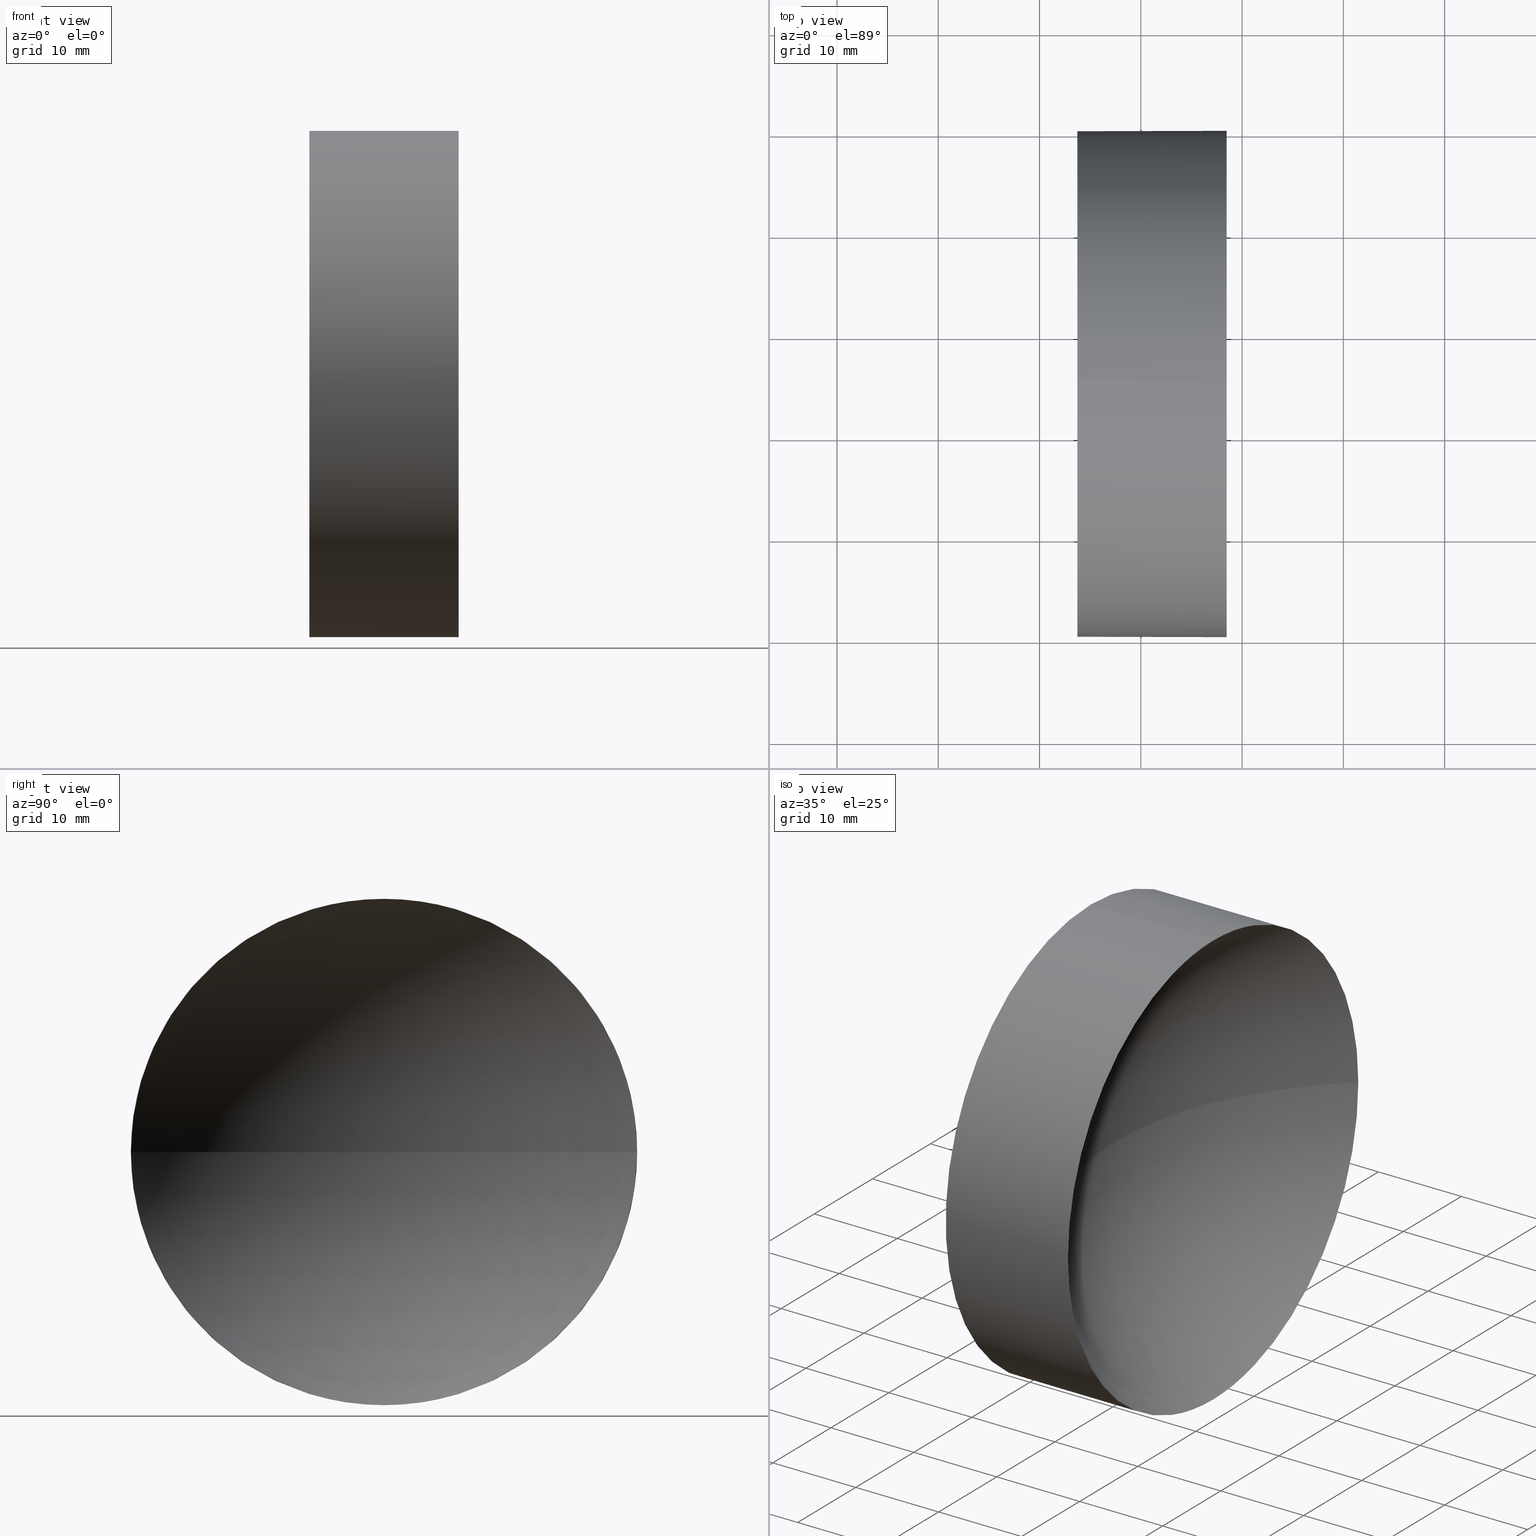
[diagram: canonical four-view strip — front | top / right | iso, engineering-drawing reading convention]
A machine part, canonical four-view strip (front | top / right | iso — engineering-drawing reading convention). The complete STEP part file that produces these views, byte-faithful:
ISO-10303-21;
HEADER;
FILE_DESCRIPTION (( 'STEP AP214' ),
    '1' );
FILE_NAME ('120054.STEP',
    '2019-06-18T01:30:45',
    ( '' ),
    ( '' ),
    'SwSTEP 2.0',
    'SolidWorks 2016',
    '' );
FILE_SCHEMA (( 'AUTOMOTIVE_DESIGN' ));
ENDSEC;

DATA;
#1 = EDGE_CURVE ( 'NONE', #76, #15, #160, .T. ) ;
#2 = ADVANCED_FACE ( 'NONE', ( #72 ), #172, .T. ) ;
#3 = DIRECTION ( 'NONE',  ( -1.000000000000000000, -0.0000000000000000000, -0.0000000000000000000 ) ) ;
#4 = CARTESIAN_POINT ( 'NONE',  ( 128.4728774773483100, 65.15563045701519200, 0.0000000000000000000 ) ) ;
#5 = ORIENTED_EDGE ( 'NONE', *, *, #47, .F. ) ;
#6 = SURFACE_SIDE_STYLE ('',( #181 ) ) ;
#7 = ORIENTED_EDGE ( 'NONE', *, *, #88, .F. ) ;
#8 = CIRCLE ( 'NONE', #132, 32.50000000000000000 ) ;
#9 = APPLICATION_PROTOCOL_DEFINITION ( 'draft international standard', 'automotive_design', 1998, #96 ) ;
#10 = CARTESIAN_POINT ( 'NONE',  ( 128.4728774773483100, 65.15563045701519200, 24.99999999999999300 ) ) ;
#11 = DIRECTION ( 'NONE',  ( 0.0000000000000000000, 0.0000000000000000000, -1.000000000000000000 ) ) ;
#12 = EDGE_CURVE ( 'NONE', #76, #185, #83, .T. ) ;
#13 = ORIENTED_EDGE ( 'NONE', *, *, #1, .T. ) ;
#14 = CARTESIAN_POINT ( 'NONE',  ( 0.0000000000000000000, 0.0000000000000000000, 0.0000000000000000000 ) ) ;
#15 = VERTEX_POINT ( 'NONE', #55 ) ;
#16 = SPHERICAL_SURFACE ( 'NONE', #134, 32.50000000000000000 ) ;
#17 = PRODUCT_RELATED_PRODUCT_CATEGORY ( 'part', '', ( #146 ) ) ;
#18 = MANIFOLD_SOLID_BREP ( '��ת1', #65 ) ;
#19 = ORIENTED_EDGE ( 'NONE', *, *, #53, .T. ) ;
#20 = DIRECTION ( 'NONE',  ( 0.0000000000000000000, 0.0000000000000000000, 1.000000000000000000 ) ) ;
#21 = LINE ( 'NONE', #97, #158 ) ;
#22 = AXIS2_PLACEMENT_3D ( 'NONE', #73, #3, #105 ) ;
#23 = CIRCLE ( 'NONE', #30, 24.99999999999999300 ) ;
#24 = APPLICATION_PROTOCOL_DEFINITION ( 'draft international standard', 'automotive_design', 1998, #130 ) ;
#25 =( NAMED_UNIT ( * ) SI_UNIT ( $, .STERADIAN. ) SOLID_ANGLE_UNIT ( ) );
#26 = DIRECTION ( 'NONE',  ( 0.0000000000000000000, 0.0000000000000000000, 1.000000000000000000 ) ) ;
#27 = FACE_OUTER_BOUND ( 'NONE', #37, .T. ) ;
#28 = ORIENTED_EDGE ( 'NONE', *, *, #34, .F. ) ;
#29 = SURFACE_STYLE_FILL_AREA ( #99 ) ;
#30 = AXIS2_PLACEMENT_3D ( 'NONE', #4, #89, #94 ) ;
#31 = ORIENTED_EDGE ( 'NONE', *, *, #47, .T. ) ;
#32 = CARTESIAN_POINT ( 'NONE',  ( 128.4728774773483100, 65.15563045701519200, -24.99999999999999300 ) ) ;
#33 = DIRECTION ( 'NONE',  ( 0.0000000000000000000, 0.0000000000000000000, 1.000000000000000000 ) ) ;
#34 = EDGE_CURVE ( 'NONE', #15, #62, #23, .T. ) ;
#35 = CARTESIAN_POINT ( 'NONE',  ( 105.6218371238301200, 65.15563045701519200, 24.99999999999999300 ) ) ;
#36 = DIRECTION ( 'NONE',  ( 0.0000000000000000000, 0.0000000000000000000, 1.000000000000000000 ) ) ;
#37 = EDGE_LOOP ( 'NONE', ( #43, #85 ) ) ;
#38 = DIRECTION ( 'NONE',  ( 1.000000000000000000, 0.0000000000000000000, 0.0000000000000000000 ) ) ;
#39 = DIRECTION ( 'NONE',  ( 0.0000000000000000000, 0.0000000000000000000, 1.000000000000000000 ) ) ;
#40 =( LENGTH_UNIT ( ) NAMED_UNIT ( * ) SI_UNIT ( .MILLI., .METRE. ) );
#41 = PRODUCT_CONTEXT ( 'NONE', #130, 'mechanical' ) ;
#42 = PRESENTATION_STYLE_ASSIGNMENT (( #122 ) ) ;
#43 = ORIENTED_EDGE ( 'NONE', *, *, #88, .T. ) ;
#44 = EDGE_CURVE ( 'NONE', #148, #185, #142, .T. ) ;
#45 = EDGE_LOOP ( 'NONE', ( #147, #116, #31, #167, #111 ) ) ;
#46 = CIRCLE ( 'NONE', #151, 32.50000000000000000 ) ;
#47 = EDGE_CURVE ( 'NONE', #103, #76, #98, .T. ) ;
#48 = ORIENTED_EDGE ( 'NONE', *, *, #34, .T. ) ;
#49 = AXIS2_PLACEMENT_3D ( 'NONE', #127, #38, #128 ) ;
#50 = CARTESIAN_POINT ( 'NONE',  ( 149.2394371346434800, 65.15563045701517800, 0.0000000000000000000 ) ) ;
#51 = UNCERTAINTY_MEASURE_WITH_UNIT (LENGTH_MEASURE( 1.000000000000000100E-005 ), #169, 'distance_accuracy_value', 'NONE');
#52 = DIRECTION ( 'NONE',  ( 0.0000000000000000000, 1.000000000000000000, 0.0000000000000000000 ) ) ;
#53 = EDGE_CURVE ( 'NONE', #103, #120, #46, .T. ) ;
#54 = AXIS2_PLACEMENT_3D ( 'NONE', #141, #139, #143 ) ;
#55 = CARTESIAN_POINT ( 'NONE',  ( 128.4728774773483100, 90.15563045701519200, 0.0000000000000000000 ) ) ;
#56 = DIRECTION ( 'NONE',  ( -1.000000000000000000, -0.0000000000000000000, -0.0000000000000000000 ) ) ;
#57 = EDGE_CURVE ( 'NONE', #15, #120, #8, .T. ) ;
#58 = CARTESIAN_POINT ( 'NONE',  ( 113.7394371346435000, 65.15563045701519200, 0.0000000000000000000 ) ) ;
#59 = DIRECTION ( 'NONE',  ( 1.000000000000000000, 0.0000000000000000000, 0.0000000000000000000 ) ) ;
#60 = ORIENTED_EDGE ( 'NONE', *, *, #79, .T. ) ;
#61 = DIRECTION ( 'NONE',  ( -1.000000000000000000, -0.0000000000000000000, -0.0000000000000000000 ) ) ;
#62 = VERTEX_POINT ( 'NONE', #32 ) ;
#63 = CIRCLE ( 'NONE', #82, 24.99999999999999300 ) ;
#64 =( GEOMETRIC_REPRESENTATION_CONTEXT ( 3 ) GLOBAL_UNCERTAINTY_ASSIGNED_CONTEXT ( ( #51 ) ) GLOBAL_UNIT_ASSIGNED_CONTEXT ( ( #169, #153, #25 ) ) REPRESENTATION_CONTEXT ( 'NONE', 'WORKASPACE' ) );
#65 = CLOSED_SHELL ( 'NONE', ( #84, #133, #108, #2, #68 ) ) ;
#66 = EDGE_CURVE ( 'NONE', #62, #103, #63, .T. ) ;
#67 = VECTOR ( 'NONE', #56, 1000.000000000000000 ) ;
#68 = ADVANCED_FACE ( 'NONE', ( #27 ), #156, .F. ) ;
#69 = MECHANICAL_DESIGN_GEOMETRIC_PRESENTATION_REPRESENTATION (  '', ( #77 ), #118 ) ;
#70 = ORIENTED_EDGE ( 'NONE', *, *, #57, .T. ) ;
#71 = DIRECTION ( 'NONE',  ( 0.0000000000000000000, 0.0000000000000000000, 1.000000000000000000 ) ) ;
#72 = FACE_OUTER_BOUND ( 'NONE', #45, .T. ) ;
#73 = CARTESIAN_POINT ( 'NONE',  ( 105.6218371238301200, 65.15563045701519200, 0.0000000000000000000 ) ) ;
#74 =( LENGTH_UNIT ( ) NAMED_UNIT ( * ) SI_UNIT ( .MILLI., .METRE. ) );
#75 = CARTESIAN_POINT ( 'NONE',  ( 128.4728774773483100, 40.15563045701518500, -3.061616997868382300E-015 ) ) ;
#76 = VERTEX_POINT ( 'NONE', #10 ) ;
#77 = STYLED_ITEM ( 'NONE', ( #42 ), #18 ) ;
#78 = DIRECTION ( 'NONE',  ( -1.000000000000000000, -0.0000000000000000000, -0.0000000000000000000 ) ) ;
#79 = EDGE_CURVE ( 'NONE', #62, #148, #21, .T. ) ;
#80 = SHAPE_DEFINITION_REPRESENTATION ( #90, #104 ) ;
#81 = ORIENTED_EDGE ( 'NONE', *, *, #1, .F. ) ;
#82 = AXIS2_PLACEMENT_3D ( 'NONE', #170, #182, #154 ) ;
#83 = LINE ( 'NONE', #35, #67 ) ;
#84 = ADVANCED_FACE ( 'NONE', ( #174 ), #121, .T. ) ;
#85 = ORIENTED_EDGE ( 'NONE', *, *, #44, .T. ) ;
#86 =( GEOMETRIC_REPRESENTATION_CONTEXT ( 3 ) GLOBAL_UNCERTAINTY_ASSIGNED_CONTEXT ( ( #168 ) ) GLOBAL_UNIT_ASSIGNED_CONTEXT ( ( #40, #95, #184 ) ) REPRESENTATION_CONTEXT ( 'NONE', 'WORKASPACE' ) );
#87 = PRODUCT_DEFINITION_CONTEXT ( 'detailed design', #96, 'design' ) ;
#88 = EDGE_CURVE ( 'NONE', #185, #148, #117, .T. ) ;
#89 = DIRECTION ( 'NONE',  ( -1.000000000000000000, -0.0000000000000000000, -0.0000000000000000000 ) ) ;
#90 = PRODUCT_DEFINITION_SHAPE ( 'NONE', 'NONE',  #145 ) ;
#91 = AXIS2_PLACEMENT_3D ( 'NONE', #112, #61, #36 ) ;
#92 = ORIENTED_EDGE ( 'NONE', *, *, #57, .F. ) ;
#93 = PRESENTATION_STYLE_ASSIGNMENT (( #144 ) ) ;
#94 = DIRECTION ( 'NONE',  ( 0.0000000000000000000, 0.0000000000000000000, 1.000000000000000000 ) ) ;
#95 =( NAMED_UNIT ( * ) PLANE_ANGLE_UNIT ( ) SI_UNIT ( $, .RADIAN. ) );
#96 = APPLICATION_CONTEXT ( 'automotive_design' ) ;
#97 = CARTESIAN_POINT ( 'NONE',  ( 105.6218371238301200, 65.15563045701519200, -24.99999999999999300 ) ) ;
#98 = CIRCLE ( 'NONE', #178, 24.99999999999999300 ) ;
#99 = FILL_AREA_STYLE ('',( #183 ) ) ;
#100 = AXIS2_PLACEMENT_3D ( 'NONE', #58, #175, #20 ) ;
#101 = EDGE_LOOP ( 'NONE', ( #163, #137, #28, #70 ) ) ;
#102 = STYLED_ITEM ( 'NONE', ( #93 ), #104 ) ;
#103 = VERTEX_POINT ( 'NONE', #75 ) ;
#104 = ADVANCED_BREP_SHAPE_REPRESENTATION ( '120054', ( #18, #162 ), #64 ) ;
#105 = DIRECTION ( 'NONE',  ( 0.0000000000000000000, 0.0000000000000000000, 1.000000000000000000 ) ) ;
#106 = DIRECTION ( 'NONE',  ( 0.0000000000000000000, 1.000000000000000000, 1.224646799147353500E-016 ) ) ;
#107 = DIRECTION ( 'NONE',  ( -1.000000000000000000, -0.0000000000000000000, -0.0000000000000000000 ) ) ;
#108 = ADVANCED_FACE ( 'NONE', ( #125 ), #16, .F. ) ;
#109 = DIRECTION ( 'NONE',  ( 1.000000000000000000, 0.0000000000000000000, 0.0000000000000000000 ) ) ;
#110 = PRESENTATION_LAYER_ASSIGNMENT (  '', '', ( #102 ) ) ;
#111 = ORIENTED_EDGE ( 'NONE', *, *, #44, .F. ) ;
#112 = CARTESIAN_POINT ( 'NONE',  ( 105.6218371238301200, 65.15563045701519200, 0.0000000000000000000 ) ) ;
#113 = DIRECTION ( 'NONE',  ( 0.0000000000000000000, 1.000000000000000000, 0.0000000000000000000 ) ) ;
#114 = CARTESIAN_POINT ( 'NONE',  ( 113.7394371346435000, 65.15563045701519200, -24.99999999999999300 ) ) ;
#115 = CARTESIAN_POINT ( 'NONE',  ( 113.7394371346435000, 65.15563045701519200, 24.99999999999999300 ) ) ;
#116 = ORIENTED_EDGE ( 'NONE', *, *, #66, .T. ) ;
#117 = CIRCLE ( 'NONE', #54, 24.99999999999999300 ) ;
#118 =( GEOMETRIC_REPRESENTATION_CONTEXT ( 3 ) GLOBAL_UNCERTAINTY_ASSIGNED_CONTEXT ( ( #119 ) ) GLOBAL_UNIT_ASSIGNED_CONTEXT ( ( #74, #138, #166 ) ) REPRESENTATION_CONTEXT ( 'NONE', 'WORKASPACE' ) );
#119 = UNCERTAINTY_MEASURE_WITH_UNIT (LENGTH_MEASURE( 1.000000000000000100E-005 ), #74, 'distance_accuracy_value', 'NONE');
#120 = VERTEX_POINT ( 'NONE', #152 ) ;
#121 = CYLINDRICAL_SURFACE ( 'NONE', #91, 24.99999999999999300 ) ;
#122 = SURFACE_STYLE_USAGE ( .BOTH. , #6 ) ;
#123 = CARTESIAN_POINT ( 'NONE',  ( 128.4728774773483100, 65.15563045701519200, 0.0000000000000000000 ) ) ;
#124 = PRESENTATION_LAYER_ASSIGNMENT (  '', '', ( #77 ) ) ;
#125 = FACE_OUTER_BOUND ( 'NONE', #101, .T. ) ;
#126 = DIRECTION ( 'NONE',  ( 0.0000000000000000000, 0.0000000000000000000, -1.000000000000000000 ) ) ;
#127 = CARTESIAN_POINT ( 'NONE',  ( 113.7394371346435000, 65.15563045701519200, 0.0000000000000000000 ) ) ;
#128 = DIRECTION ( 'NONE',  ( 0.0000000000000000000, 0.0000000000000000000, -1.000000000000000000 ) ) ;
#129 = SURFACE_SIDE_STYLE ('',( #29 ) ) ;
#130 = APPLICATION_CONTEXT ( 'automotive_design' ) ;
#131 = EDGE_LOOP ( 'NONE', ( #5, #19, #92, #81 ) ) ;
#132 = AXIS2_PLACEMENT_3D ( 'NONE', #155, #39, #109 ) ;
#133 = ADVANCED_FACE ( 'NONE', ( #173 ), #164, .F. ) ;
#134 = AXIS2_PLACEMENT_3D ( 'NONE', #50, #11, #113 ) ;
#135 = FILL_AREA_STYLE ('',( #165 ) ) ;
#136 = CARTESIAN_POINT ( 'NONE',  ( 149.2394371346434800, 65.15563045701517800, 0.0000000000000000000 ) ) ;
#137 = ORIENTED_EDGE ( 'NONE', *, *, #66, .F. ) ;
#138 =( NAMED_UNIT ( * ) PLANE_ANGLE_UNIT ( ) SI_UNIT ( $, .RADIAN. ) );
#139 = DIRECTION ( 'NONE',  ( -1.000000000000000000, -0.0000000000000000000, -0.0000000000000000000 ) ) ;
#140 = AXIS2_PLACEMENT_3D ( 'NONE', #171, #126, #52 ) ;
#141 = CARTESIAN_POINT ( 'NONE',  ( 113.7394371346435000, 65.15563045701519200, 0.0000000000000000000 ) ) ;
#142 = CIRCLE ( 'NONE', #100, 24.99999999999999300 ) ;
#143 = DIRECTION ( 'NONE',  ( 0.0000000000000000000, 0.0000000000000000000, 1.000000000000000000 ) ) ;
#144 = SURFACE_STYLE_USAGE ( .BOTH. , #129 ) ;
#145 = PRODUCT_DEFINITION ( 'δ֪', '', #161, #87 ) ;
#146 = PRODUCT ( '120054', '120054', '', ( #41 ) ) ;
#147 = ORIENTED_EDGE ( 'NONE', *, *, #79, .F. ) ;
#148 = VERTEX_POINT ( 'NONE', #114 ) ;
#149 = DIRECTION ( 'NONE',  ( 0.0000000000000000000, 1.224646799147353200E-016, -1.000000000000000000 ) ) ;
#150 = ORIENTED_EDGE ( 'NONE', *, *, #12, .F. ) ;
#151 = AXIS2_PLACEMENT_3D ( 'NONE', #136, #149, #106 ) ;
#152 = CARTESIAN_POINT ( 'NONE',  ( 116.7394371346435000, 65.15563045701517800, 0.0000000000000000000 ) ) ;
#153 =( NAMED_UNIT ( * ) PLANE_ANGLE_UNIT ( ) SI_UNIT ( $, .RADIAN. ) );
#154 = DIRECTION ( 'NONE',  ( 0.0000000000000000000, 0.0000000000000000000, 1.000000000000000000 ) ) ;
#155 = CARTESIAN_POINT ( 'NONE',  ( 149.2394371346434800, 65.15563045701517800, 0.0000000000000000000 ) ) ;
#156 = PLANE ( 'NONE',  #49 ) ;
#157 = COLOUR_RGB ( '',1.000000000000000000, 1.000000000000000000, 1.000000000000000000 ) ;
#158 = VECTOR ( 'NONE', #78, 1000.000000000000000 ) ;
#159 = AXIS2_PLACEMENT_3D ( 'NONE', #123, #177, #33 ) ;
#160 = CIRCLE ( 'NONE', #159, 24.99999999999999300 ) ;
#161 = PRODUCT_DEFINITION_FORMATION_WITH_SPECIFIED_SOURCE ( '�κ�', '', #146, .NOT_KNOWN. ) ;
#162 = AXIS2_PLACEMENT_3D ( 'NONE', #14, #26, #59 ) ;
#163 = ORIENTED_EDGE ( 'NONE', *, *, #53, .F. ) ;
#164 = SPHERICAL_SURFACE ( 'NONE', #140, 32.50000000000000000 ) ;
#165 = FILL_AREA_STYLE_COLOUR ( '', #157 ) ;
#166 =( NAMED_UNIT ( * ) SI_UNIT ( $, .STERADIAN. ) SOLID_ANGLE_UNIT ( ) );
#167 = ORIENTED_EDGE ( 'NONE', *, *, #12, .T. ) ;
#168 = UNCERTAINTY_MEASURE_WITH_UNIT (LENGTH_MEASURE( 1.000000000000000100E-005 ), #40, 'distance_accuracy_value', 'NONE');
#169 =( LENGTH_UNIT ( ) NAMED_UNIT ( * ) SI_UNIT ( .MILLI., .METRE. ) );
#170 = CARTESIAN_POINT ( 'NONE',  ( 128.4728774773483100, 65.15563045701519200, 0.0000000000000000000 ) ) ;
#171 = CARTESIAN_POINT ( 'NONE',  ( 149.2394371346434800, 65.15563045701517800, 0.0000000000000000000 ) ) ;
#172 = CYLINDRICAL_SURFACE ( 'NONE', #22, 24.99999999999999300 ) ;
#173 = FACE_OUTER_BOUND ( 'NONE', #131, .T. ) ;
#174 = FACE_OUTER_BOUND ( 'NONE', #176, .T. ) ;
#175 = DIRECTION ( 'NONE',  ( -1.000000000000000000, -0.0000000000000000000, -0.0000000000000000000 ) ) ;
#176 = EDGE_LOOP ( 'NONE', ( #48, #60, #7, #150, #13 ) ) ;
#177 = DIRECTION ( 'NONE',  ( -1.000000000000000000, -0.0000000000000000000, -0.0000000000000000000 ) ) ;
#178 = AXIS2_PLACEMENT_3D ( 'NONE', #179, #107, #71 ) ;
#179 = CARTESIAN_POINT ( 'NONE',  ( 128.4728774773483100, 65.15563045701519200, 0.0000000000000000000 ) ) ;
#180 = MECHANICAL_DESIGN_GEOMETRIC_PRESENTATION_REPRESENTATION (  '', ( #102 ), #86 ) ;
#181 = SURFACE_STYLE_FILL_AREA ( #135 ) ;
#182 = DIRECTION ( 'NONE',  ( -1.000000000000000000, -0.0000000000000000000, -0.0000000000000000000 ) ) ;
#183 = FILL_AREA_STYLE_COLOUR ( '', #186 ) ;
#184 =( NAMED_UNIT ( * ) SI_UNIT ( $, .STERADIAN. ) SOLID_ANGLE_UNIT ( ) );
#185 = VERTEX_POINT ( 'NONE', #115 ) ;
#186 = COLOUR_RGB ( '',1.000000000000000000, 1.000000000000000000, 1.000000000000000000 ) ;
ENDSEC;
END-ISO-10303-21;
